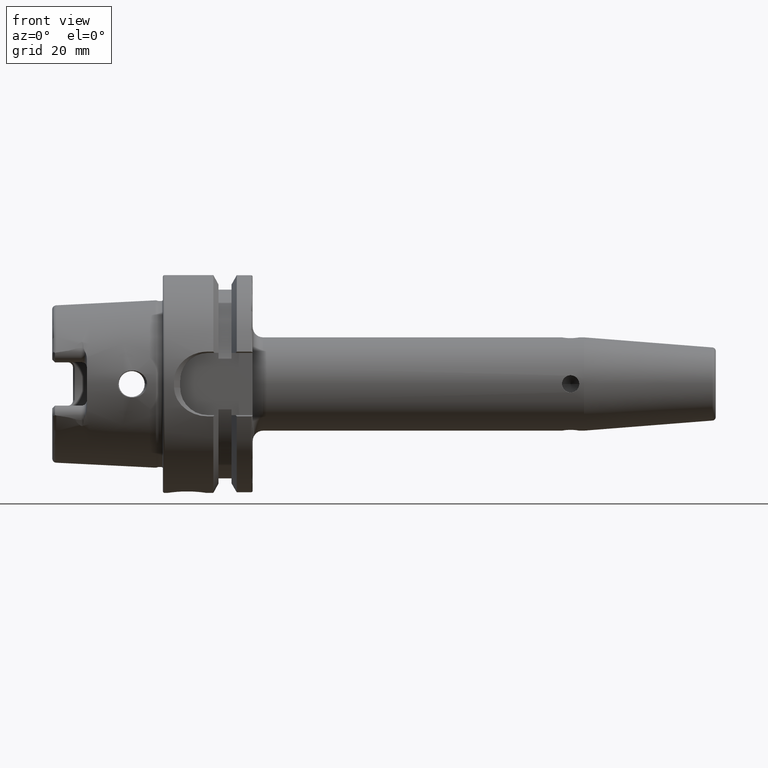
[diagram: clean part render]
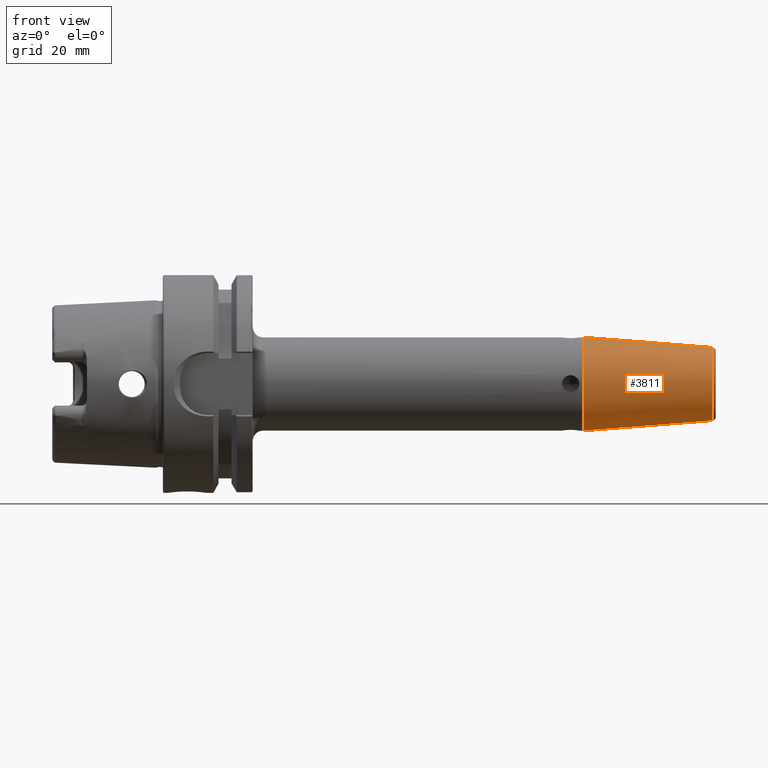
[diagram: same view with one face highlighted and labeled with its STEP entity id]
A machine part, front view. The second image highlights one B-rep face of the part: STEP entity #3811.
In plain terms, the highlighted conical surface has half-angle 4.5 deg.
Its self-contained STEP definition (entity closure, byte-faithful):
#570=CARTESIAN_POINT('',(1.590784590957E2,0.E0,0.E0));
#571=DIRECTION('',(-1.E0,0.E0,0.E0));
#572=DIRECTION('',(0.E0,0.E0,-1.E0));
#573=AXIS2_PLACEMENT_3D('',#570,#571,#572);
#575=DIRECTION('',(-9.969173337331E-1,4.678831433744E-12,-7.845909572784E-2));
#576=VECTOR('',#575,3.731209403793E1);
#577=CARTESIAN_POINT('',(1.590784590958E2,-1.745753451703E-10,
-1.057252684207E1));
#578=LINE('',#577,#576);
#579=DIRECTION('',(-9.969173337331E-1,-4.678822386596E-12,7.845909572784E-2));
#580=VECTOR('',#579,3.731209403793E1);
#581=CARTESIAN_POINT('',(1.590784590958E2,1.745750076023E-10,1.057252684207E1));
#582=LINE('',#581,#580);
#726=CARTESIAN_POINT('',(1.218813857915E2,0.E0,0.E0));
#727=DIRECTION('',(-1.E0,0.E0,0.E0));
#728=DIRECTION('',(0.E0,0.E0,-1.E0));
#729=AXIS2_PLACEMENT_3D('',#726,#727,#728);
#3094=CARTESIAN_POINT('',(1.218813857915E2,0.E0,-1.35E1));
#3095=CARTESIAN_POINT('',(1.218813857915E2,0.E0,1.35E1));
#3096=VERTEX_POINT('',#3094);
#3097=VERTEX_POINT('',#3095);
#3114=CARTESIAN_POINT('',(1.590784590957E2,0.E0,-1.057252684207E1));
#3115=CARTESIAN_POINT('',(1.590784590957E2,0.E0,1.057252684207E1));
#3116=VERTEX_POINT('',#3114);
#3117=VERTEX_POINT('',#3115);
#3797=CARTESIAN_POINT('',(1.404799224436E2,0.E0,0.E0));
#3798=DIRECTION('',(-1.E0,0.E0,0.E0));
#3799=DIRECTION('',(0.E0,0.E0,-1.E0));
#3800=AXIS2_PLACEMENT_3D('',#3797,#3798,#3799);
#3801=CONICAL_SURFACE('',#3800,1.203626342104E1,4.5E0);
#3802=ORIENTED_EDGE('',*,*,#3787,.F.);
#3804=ORIENTED_EDGE('',*,*,#3803,.T.);
#3806=ORIENTED_EDGE('',*,*,#3805,.T.);
#3808=ORIENTED_EDGE('',*,*,#3807,.F.);
#3809=EDGE_LOOP('',(#3802,#3804,#3806,#3808));
#3810=FACE_OUTER_BOUND('',#3809,.F.);
#3811=ADVANCED_FACE('',(#3810),#3801,.T.);
#574=CIRCLE('',#573,1.057252684207E1);
#730=CIRCLE('',#729,1.35E1);
#3787=EDGE_CURVE('',#3116,#3117,#574,.T.);
#3803=EDGE_CURVE('',#3116,#3096,#578,.T.);
#3805=EDGE_CURVE('',#3096,#3097,#730,.T.);
#3807=EDGE_CURVE('',#3117,#3097,#582,.T.);